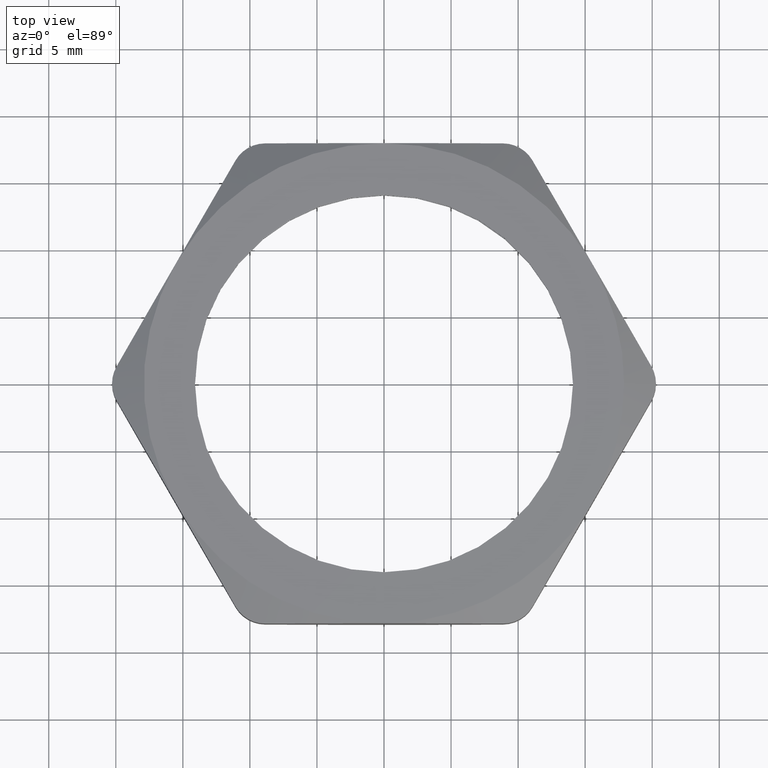
[diagram: clean part render]
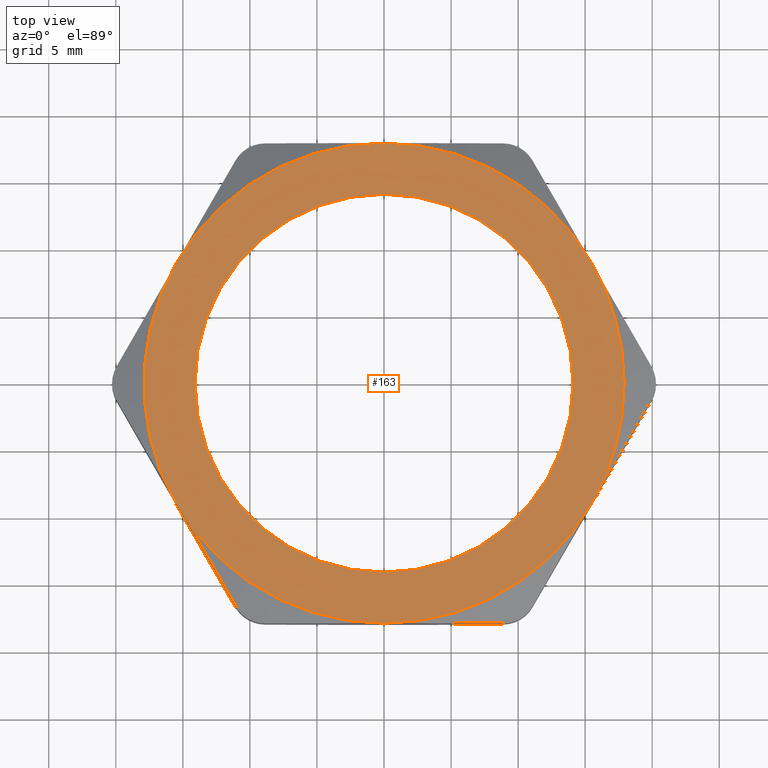
[diagram: same view with one face highlighted and labeled with its STEP entity id]
A machine part, top view. The second image highlights one B-rep face of the part: STEP entity #163.
In plain terms, the highlighted planar face has unit normal (0, 0, -1).
Its self-contained STEP definition (entity closure, byte-faithful):
#50 = EDGE_CURVE ( 'NONE', #108, #991, #204, .T. ) ;
#51 = ORIENTED_EDGE ( 'NONE', *, *, #155, .T. ) ;
#67 = ORIENTED_EDGE ( 'NONE', *, *, #68, .T. ) ;
#68 = EDGE_CURVE ( 'NONE', #1068, #120, #276, .T. ) ;
#69 = ORIENTED_EDGE ( 'NONE', *, *, #70, .T. ) ;
#70 = EDGE_CURVE ( 'NONE', #120, #786, #272, .T. ) ;
#71 = ORIENTED_EDGE ( 'NONE', *, *, #785, .T. ) ;
#72 = ORIENTED_EDGE ( 'NONE', *, *, #73, .T. ) ;
#73 = EDGE_CURVE ( 'NONE', #787, #108, #268, .T. ) ;
#108 = VERTEX_POINT ( 'NONE', #354 ) ;
#120 = VERTEX_POINT ( 'NONE', #385 ) ;
#127 = ORIENTED_EDGE ( 'NONE', *, *, #733, .F. ) ;
#128 = ORIENTED_EDGE ( 'NONE', *, *, #129, .F. ) ;
#129 = EDGE_CURVE ( 'NONE', #736, #734, #426, .T. ) ;
#130 = EDGE_LOOP ( 'NONE', ( #131, #51, #156, #67, #69, #71, #72 ) ) ;
#131 = ORIENTED_EDGE ( 'NONE', *, *, #50, .T. ) ;
#155 = EDGE_CURVE ( 'NONE', #991, #1080, #454, .T. ) ;
#156 = ORIENTED_EDGE ( 'NONE', *, *, #157, .T. ) ;
#157 = EDGE_CURVE ( 'NONE', #1080, #1068, #440, .T. ) ;
#163 = ADVANCED_FACE ( 'NONE', ( #484, #482 ), #473, .F. ) ;
#164 = EDGE_LOOP ( 'NONE', ( #127, #128 ) ) ;
#201 = DIRECTION ( 'NONE',  ( 1.000000000000000000, 0.0000000000000000000, 0.0000000000000000000 ) ) ;
#202 = DIRECTION ( 'NONE',  ( 0.0000000000000000000, 0.0000000000000000000, 1.000000000000000000 ) ) ;
#203 = AXIS2_PLACEMENT_3D ( 'NONE', #209, #202, #201 ) ;
#204 = CIRCLE ( 'NONE', #203, 0.7049999999999999600 ) ;
#209 = CARTESIAN_POINT ( 'NONE',  ( 0.0000000000000000000, 0.0000000000000000000, 0.2700000000000000200 ) ) ;
#264 = DIRECTION ( 'NONE',  ( 1.000000000000000000, 0.0000000000000000000, 0.0000000000000000000 ) ) ;
#265 = DIRECTION ( 'NONE',  ( 0.0000000000000000000, 0.0000000000000000000, 1.000000000000000000 ) ) ;
#266 = CARTESIAN_POINT ( 'NONE',  ( 0.0000000000000000000, 0.0000000000000000000, 0.2700000000000000200 ) ) ;
#267 = AXIS2_PLACEMENT_3D ( 'NONE', #266, #265, #264 ) ;
#268 = CIRCLE ( 'NONE', #267, 0.7049999999999999600 ) ;
#269 = DIRECTION ( 'NONE',  ( 1.000000000000000000, 0.0000000000000000000, 0.0000000000000000000 ) ) ;
#270 = DIRECTION ( 'NONE',  ( 0.0000000000000000000, 0.0000000000000000000, 1.000000000000000000 ) ) ;
#271 = AXIS2_PLACEMENT_3D ( 'NONE', #277, #270, #269 ) ;
#272 = CIRCLE ( 'NONE', #271, 0.7049999999999999600 ) ;
#273 = DIRECTION ( 'NONE',  ( 1.000000000000000000, 0.0000000000000000000, 0.0000000000000000000 ) ) ;
#274 = DIRECTION ( 'NONE',  ( 0.0000000000000000000, 0.0000000000000000000, 1.000000000000000000 ) ) ;
#275 = AXIS2_PLACEMENT_3D ( 'NONE', #287, #274, #273 ) ;
#276 = CIRCLE ( 'NONE', #275, 0.7049999999999999600 ) ;
#277 = CARTESIAN_POINT ( 'NONE',  ( 0.0000000000000000000, 0.0000000000000000000, 0.2700000000000000200 ) ) ;
#287 = CARTESIAN_POINT ( 'NONE',  ( 0.0000000000000000000, 0.0000000000000000000, 0.2700000000000000200 ) ) ;
#354 = CARTESIAN_POINT ( 'NONE',  ( 0.0000000000000000000, 0.7049999999999999600, 0.2700000000000000200 ) ) ;
#385 = CARTESIAN_POINT ( 'NONE',  ( 0.6105479096680293000, -0.3524999999999999800, 0.2700000000000000200 ) ) ;
#422 = DIRECTION ( 'NONE',  ( 1.000000000000000000, 0.0000000000000000000, 0.0000000000000000000 ) ) ;
#423 = DIRECTION ( 'NONE',  ( 0.0000000000000000000, 0.0000000000000000000, 1.000000000000000000 ) ) ;
#424 = CARTESIAN_POINT ( 'NONE',  ( 0.0000000000000000000, 0.0000000000000000000, 0.2700000000000000200 ) ) ;
#425 = AXIS2_PLACEMENT_3D ( 'NONE', #424, #423, #422 ) ;
#426 = CIRCLE ( 'NONE', #425, 0.5550000000000000500 ) ;
#437 = DIRECTION ( 'NONE',  ( 1.000000000000000000, 0.0000000000000000000, 0.0000000000000000000 ) ) ;
#438 = DIRECTION ( 'NONE',  ( 0.0000000000000000000, 0.0000000000000000000, 1.000000000000000000 ) ) ;
#439 = AXIS2_PLACEMENT_3D ( 'NONE', #445, #438, #437 ) ;
#440 = CIRCLE ( 'NONE', #439, 0.7049999999999999600 ) ;
#441 = DIRECTION ( 'NONE',  ( 1.000000000000000000, 0.0000000000000000000, 0.0000000000000000000 ) ) ;
#442 = DIRECTION ( 'NONE',  ( 0.0000000000000000000, 0.0000000000000000000, 1.000000000000000000 ) ) ;
#443 = CARTESIAN_POINT ( 'NONE',  ( 0.0000000000000000000, 0.0000000000000000000, 0.2700000000000000200 ) ) ;
#444 = AXIS2_PLACEMENT_3D ( 'NONE', #443, #442, #441 ) ;
#445 = CARTESIAN_POINT ( 'NONE',  ( 0.0000000000000000000, 0.0000000000000000000, 0.2700000000000000200 ) ) ;
#454 = CIRCLE ( 'NONE', #444, 0.7049999999999999600 ) ;
#469 = DIRECTION ( 'NONE',  ( -1.000000000000000000, 0.0000000000000000000, 0.0000000000000000000 ) ) ;
#470 = DIRECTION ( 'NONE',  ( 0.0000000000000000000, 0.0000000000000000000, -1.000000000000000000 ) ) ;
#471 = CARTESIAN_POINT ( 'NONE',  ( -0.4070319397786861200, 0.7049999999999999600, 0.2700000000000000200 ) ) ;
#472 = AXIS2_PLACEMENT_3D ( 'NONE', #471, #470, #469 ) ;
#473 = PLANE ( 'NONE',  #472 ) ;
#482 = FACE_OUTER_BOUND ( 'NONE', #130, .T. ) ;
#484 = FACE_BOUND ( 'NONE', #164, .T. ) ;
#733 = EDGE_CURVE ( 'NONE', #734, #736, #1342, .T. ) ;
#734 = VERTEX_POINT ( 'NONE', #1337 ) ;
#736 = VERTEX_POINT ( 'NONE', #1336 ) ;
#785 = EDGE_CURVE ( 'NONE', #786, #787, #1434, .T. ) ;
#786 = VERTEX_POINT ( 'NONE', #1429 ) ;
#787 = VERTEX_POINT ( 'NONE', #1428 ) ;
#991 = VERTEX_POINT ( 'NONE', #1890 ) ;
#1068 = VERTEX_POINT ( 'NONE', #2040 ) ;
#1080 = VERTEX_POINT ( 'NONE', #2020 ) ;
#1336 = CARTESIAN_POINT ( 'NONE',  ( 0.5550000000000000500, 6.919254415182545100E-017, 0.2700000000000000200 ) ) ;
#1337 = CARTESIAN_POINT ( 'NONE',  ( -0.5550000000000000500, 0.0000000000000000000, 0.2700000000000000200 ) ) ;
#1338 = DIRECTION ( 'NONE',  ( 1.000000000000000000, 0.0000000000000000000, 0.0000000000000000000 ) ) ;
#1339 = DIRECTION ( 'NONE',  ( 0.0000000000000000000, 0.0000000000000000000, 1.000000000000000000 ) ) ;
#1340 = CARTESIAN_POINT ( 'NONE',  ( 0.0000000000000000000, 0.0000000000000000000, 0.2700000000000000200 ) ) ;
#1341 = AXIS2_PLACEMENT_3D ( 'NONE', #1340, #1339, #1338 ) ;
#1342 = CIRCLE ( 'NONE', #1341, 0.5550000000000000500 ) ;
#1428 = CARTESIAN_POINT ( 'NONE',  ( 0.6105479096680297400, 0.3525000000000000900, 0.2700000000000000200 ) ) ;
#1429 = CARTESIAN_POINT ( 'NONE',  ( 0.7049999999999999600, 0.0000000000000000000, 0.2700000000000000200 ) ) ;
#1430 = DIRECTION ( 'NONE',  ( 1.000000000000000000, 0.0000000000000000000, 0.0000000000000000000 ) ) ;
#1431 = DIRECTION ( 'NONE',  ( 0.0000000000000000000, 0.0000000000000000000, 1.000000000000000000 ) ) ;
#1432 = CARTESIAN_POINT ( 'NONE',  ( 0.0000000000000000000, 0.0000000000000000000, 0.2700000000000000200 ) ) ;
#1433 = AXIS2_PLACEMENT_3D ( 'NONE', #1432, #1431, #1430 ) ;
#1434 = CIRCLE ( 'NONE', #1433, 0.7049999999999999600 ) ;
#1890 = CARTESIAN_POINT ( 'NONE',  ( -0.6105479096680293000, 0.3524999999999999800, 0.2700000000000000200 ) ) ;
#2020 = CARTESIAN_POINT ( 'NONE',  ( -0.6105479096680294100, -0.3524999999999997000, 0.2700000000000000200 ) ) ;
#2040 = CARTESIAN_POINT ( 'NONE',  ( 1.182924880895400800E-016, -0.7049999999999998500, 0.2700000000000000200 ) ) ;